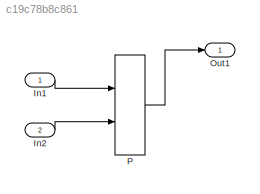
MODEL slx_c19c78b8c861
KIND model
CONFIG AbsTol = auto
CONFIG EnableMultiTasking = off
CONFIG FixedStep = auto
CONFIG MaxStep = auto
CONFIG MinStep = auto
CONFIG RelTol = 1e-3
CONFIG SampleTimeConstraint = Unconstrained
CONFIG Solver = FixedStepDiscrete
CONFIG SolverName = FixedStepDiscrete
CONFIG StartTime = 0.0
CONFIG StopTime = 10.0
BLOCK [Inport] In1
  IconDisplay = Port number
  PortDimensions = 1
BLOCK [Inport] In2
  IconDisplay = Port number
  Port = 2
BLOCK [Outport] Out1
  IconDisplay = Port number
BLOCK [DiscreteIntegrator] P
  ExternalReset = falling
  ICPrevOutput = DiscIntNeverNeededParam
  ICPrevScaledInput = DiscIntNeverNeededParam
  InitialCondition = 7
  InitialConditionSetting = State (most efficient)
  IntegratorMethod = Accumulation: Backward Euler
  LowerSaturationLimit = 5
  OutDataTypeStr = int8
  Ports = [2, 1, 0, 0, 1]
  RndMeth = Round
  SampleTime = -1
  ShowStatePort = on
  UpperSaturationLimit = 100
LINE In1:1 -> P:1
LINE In2:1 -> P:2
LINE P:1 -> Out1:1
